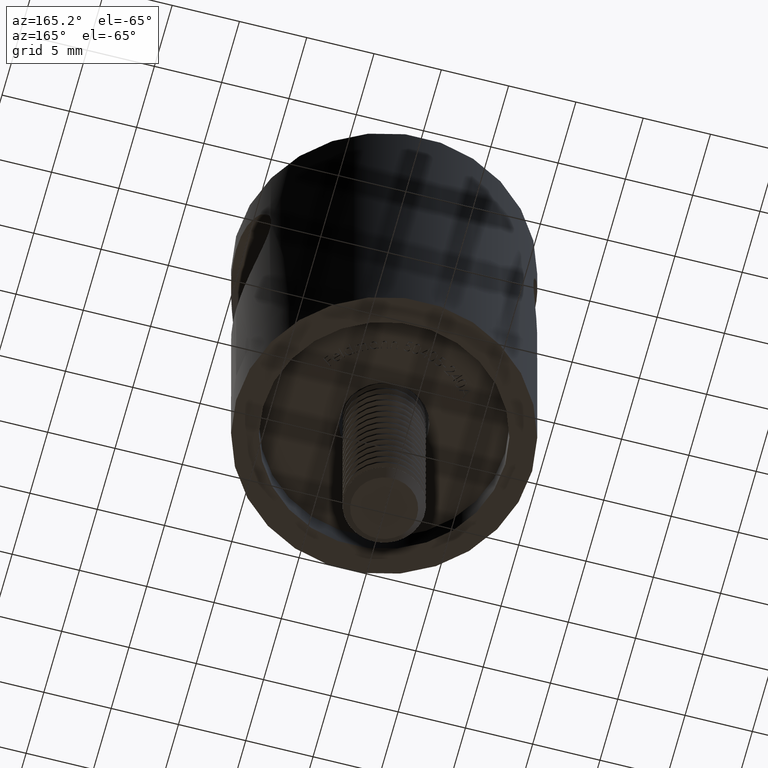
[diagram: clean part render]
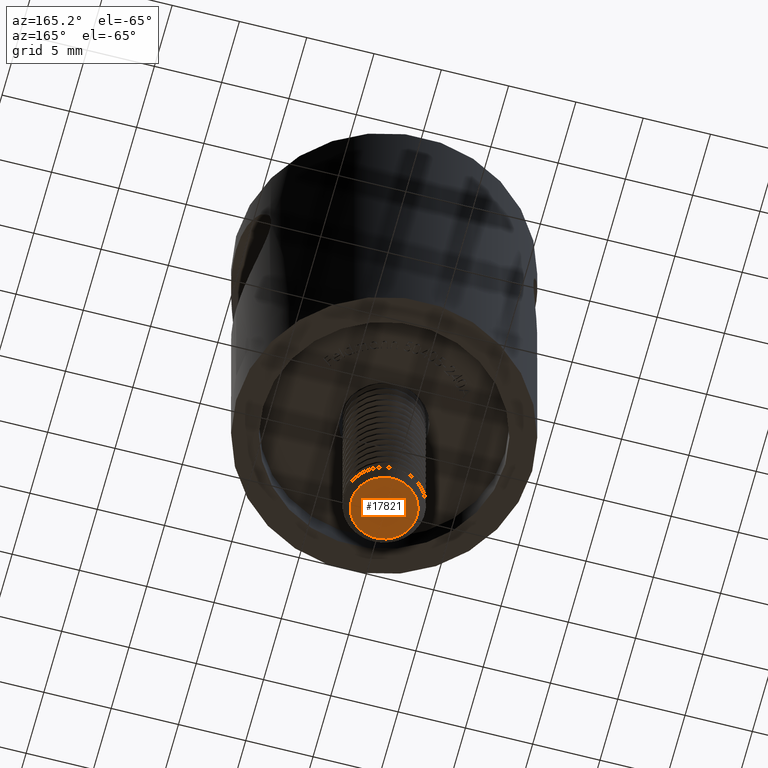
[diagram: same view with one face highlighted and labeled with its STEP entity id]
A machine part, auxiliary view. The second image highlights one B-rep face of the part: STEP entity #17821.
In plain terms, the highlighted planar face has unit normal (0, 0, -1).
Its self-contained STEP definition (entity closure, byte-faithful):
#3419 = CARTESIAN_POINT ( 'NONE',  ( 25.00000000000000000, 2.445500000000000000, 0.0000000000000000000 ) ) ;
#4912 = FACE_OUTER_BOUND ( 'NONE', #7360, .T. ) ;
#5959 = CARTESIAN_POINT ( 'NONE',  ( 25.00000000000000000, 0.0000000000000000000, 2.445500000000000000 ) ) ;
#6491 = AXIS2_PLACEMENT_3D ( 'NONE', #3419, #22181, #10229 ) ;
#6940 = DIRECTION ( 'NONE',  ( 0.0000000000000000000, 0.0000000000000000000, 1.000000000000000000 ) ) ;
#7014 = CARTESIAN_POINT ( 'NONE',  ( 25.00000000000000000, 0.0000000000000000000, 0.0000000000000000000 ) ) ;
#7360 = EDGE_LOOP ( 'NONE', ( #8601 ) ) ;
#7950 = VERTEX_POINT ( 'NONE', #5959 ) ;
#8601 = ORIENTED_EDGE ( 'NONE', *, *, #11930, .F. ) ;
#8627 = PLANE ( 'NONE',  #6491 ) ;
#10229 = DIRECTION ( 'NONE',  ( 0.0000000000000000000, 0.0000000000000000000, -1.000000000000000000 ) ) ;
#11930 = EDGE_CURVE ( 'NONE', #7950, #7950, #12292, .T. ) ;
#12292 = CIRCLE ( 'NONE', #13813, 2.445500000000000000 ) ;
#13813 = AXIS2_PLACEMENT_3D ( 'NONE', #7014, #17505, #6940 ) ;
#17505 = DIRECTION ( 'NONE',  ( -1.000000000000000000, -0.0000000000000000000, -0.0000000000000000000 ) ) ;
#17821 = ADVANCED_FACE ( 'NONE', ( #4912 ), #8627, .T. ) ;
#22181 = DIRECTION ( 'NONE',  ( 1.000000000000000000, 0.0000000000000000000, 0.0000000000000000000 ) ) ;